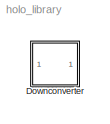
MODEL holo_library
KIND library
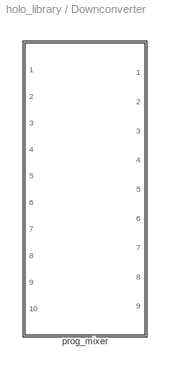
BLOCK [SubSystem] Downconverter
  FunctionWithSeparateData = off
  MinAlgLoopOccurrences = off
  Ports = []
  RTWSystemCode = Auto
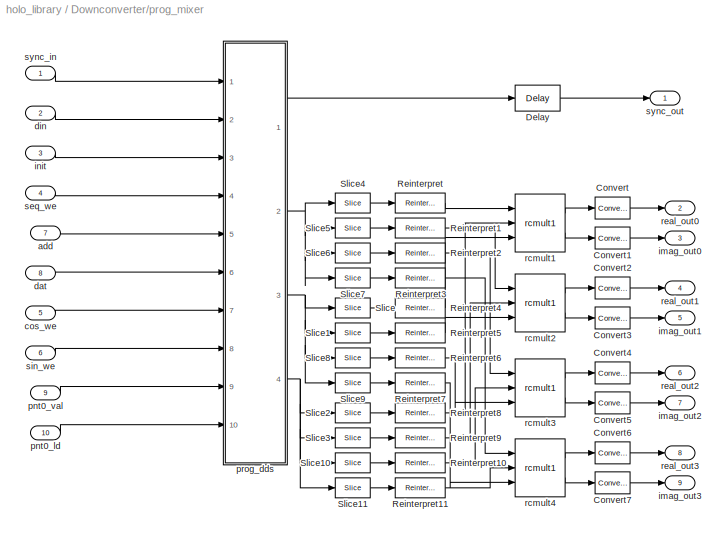
BLOCK [SubSystem] Downconverter/prog_mixer
  FunctionWithSeparateData = off
  MaskCallbackString = |||||||||||
  MaskEnableString = on,on,on,on,on,on,on,on,on,on,on,on
  MaskIconFrame = on
  MaskIconOpaque = on
  MaskIconRotate = none
  MaskIconUnits = autoscale
  MaskPromptString = Lookup depth (2^?)|Coefficient resolution (bits)|Streams|Input data resolution (bits)|Adder latency|BRAM latency|Multiplier latency|Numerator of preloaded frequency (N in N/Mxsampling frequency)|Denominator of preloaded frequency (M in N/Mxsampling frequency)|Initial phase offset|Output data bit width|Output data binary point
  MaskStyleString = edit,edit,edit,edit,edit,edit,edit,edit,edit,edit,edit,edit
  MaskTabNameString = ,,,,,,,,,,,
  MaskToolTipString = on,on,on,on,on,on,on,on,on,on,on,on
  MaskTunableValueString = on,on,on,on,on,on,on,on,on,on,on,on
  MaskValueString = 9|25|4|8|1|2|2|1|8|0|25|24
  MaskVarAliasString = ,,,,,,,,,,,
  MaskVariables = lookup_bits=@1;coeff_bits=@2;streams=@3;din_bits=@4;add_latency=@5;bram_latency=@6;mult_latency=@7;numerator=@8;denominator=@9;offset=@10;dout_bits=@11;dout_bin_pt=@12;
  MaskVisibilityString = on,on,on,on,on,on,on,on,on,on,on,on
  MinAlgLoopOccurrences = off
  Ports = [10, 9]
  RTWSystemCode = Auto
BLOCK [Reference] Downconverter/prog_mixer/Convert  REF=xbsIndex_r4/Convert
  Ports = [1, 1]
  SourceBlock = xbsIndex_r4/Convert
  SourceType = Xilinx Type Converter Block
  arith_type = Signed  (2's comp)
  bin_pt = dout_bin_pt
  block_type = convert
  block_version = 10.1.3
  dbl_ovrd = off
  has_advanced_control = 0
  infoedit = Hardware notes: rounding and saturating require hardware resources; truncating and wrapping do not.
  latency = 1
  n_bits = dout_bits
  overflow = Saturate
  pipeline = off
  quantization = Round  (unbiased: Even Values)
  sg_icon_stat = 35,22,1,1,white,blue,0,ba4d1298,right
  sg_mask_display = fprintf('','COMMENT: begin icon graphics');\npatch([0 45 45 0 ],[0 0 30 30 ],[0.77 0.82 0.91]);\npatch([15 10 17 10 15 23 25 27 35 28 22 17 23 17 22 28 35 27 25 23 15 ],[3 8 15 22 27 27 25 27 27 20 26 21 15 9 4 10 3 3 5 3 3 ],[0.98 0.96 0.92]);\nplot([0 45 45 0 0 ],[0 0 30 30 0 ]);\nfprintf('','COMMENT: end icon graphics');\nfprintf('','COMMENT: begin icon text');\ncolor('black');port_label('outpu...<+110ch>  <repeated x8 — deduplicated; at blocks: Convert, Convert1, Convert2, Convert3, Convert4, Convert5, Convert6, Convert7>
  sggui_pos = 20,20,461,334
  xl_area = [0,0,0,0,0,0,0]
  xl_use_area = off
BLOCK [Reference] Downconverter/prog_mixer/Convert1  REF=xbsIndex_r4/Convert
  Ports = [1, 1]
  SourceBlock = xbsIndex_r4/Convert
  SourceType = Xilinx Type Converter Block
  arith_type = Signed  (2's comp)
  bin_pt = dout_bin_pt
  block_type = convert
  block_version = 10.1.3
  dbl_ovrd = off
  has_advanced_control = 0
  infoedit = Hardware notes: rounding and saturating require hardware resources; truncating and wrapping do not.
  latency = 1
  n_bits = dout_bits
  overflow = Saturate
  pipeline = off
  quantization = Round  (unbiased: Even Values)
  sg_icon_stat = 35,22,1,1,white,blue,0,ba4d1298,right
  sggui_pos = 20,20,461,334
  xl_area = [0,0,0,0,0,0,0]
  xl_use_area = off
BLOCK [Reference] Downconverter/prog_mixer/Convert2  REF=xbsIndex_r4/Convert
  Ports = [1, 1]
  SourceBlock = xbsIndex_r4/Convert
  SourceType = Xilinx Type Converter Block
  arith_type = Signed  (2's comp)
  bin_pt = dout_bin_pt
  block_type = convert
  block_version = 10.1.3
  dbl_ovrd = off
  has_advanced_control = 0
  infoedit = Hardware notes: rounding and saturating require hardware resources; truncating and wrapping do not.
  latency = 1
  n_bits = dout_bits
  overflow = Saturate
  pipeline = off
  quantization = Round  (unbiased: Even Values)
  sg_icon_stat = 35,22,1,1,white,blue,0,ba4d1298,right
  sggui_pos = 20,20,461,334
  xl_area = [0,0,0,0,0,0,0]
  xl_use_area = off
BLOCK [Reference] Downconverter/prog_mixer/Convert3  REF=xbsIndex_r4/Convert
  Ports = [1, 1]
  SourceBlock = xbsIndex_r4/Convert
  SourceType = Xilinx Type Converter Block
  arith_type = Signed  (2's comp)
  bin_pt = dout_bin_pt
  block_type = convert
  block_version = 10.1.3
  dbl_ovrd = off
  has_advanced_control = 0
  infoedit = Hardware notes: rounding and saturating require hardware resources; truncating and wrapping do not.
  latency = 1
  n_bits = dout_bits
  overflow = Saturate
  pipeline = off
  quantization = Round  (unbiased: Even Values)
  sg_icon_stat = 35,22,1,1,white,blue,0,ba4d1298,right
  sggui_pos = 20,20,461,334
  xl_area = [0,0,0,0,0,0,0]
  xl_use_area = off
BLOCK [Reference] Downconverter/prog_mixer/Convert4  REF=xbsIndex_r4/Convert
  Ports = [1, 1]
  SourceBlock = xbsIndex_r4/Convert
  SourceType = Xilinx Type Converter Block
  arith_type = Signed  (2's comp)
  bin_pt = dout_bin_pt
  block_type = convert
  block_version = 10.1.3
  dbl_ovrd = off
  has_advanced_control = 0
  infoedit = Hardware notes: rounding and saturating require hardware resources; truncating and wrapping do not.
  latency = 1
  n_bits = dout_bits
  overflow = Saturate
  pipeline = off
  quantization = Round  (unbiased: Even Values)
  sg_icon_stat = 35,22,1,1,white,blue,0,ba4d1298,right
  sggui_pos = 20,20,461,334
  xl_area = [0,0,0,0,0,0,0]
  xl_use_area = off
BLOCK [Reference] Downconverter/prog_mixer/Convert5  REF=xbsIndex_r4/Convert
  Ports = [1, 1]
  SourceBlock = xbsIndex_r4/Convert
  SourceType = Xilinx Type Converter Block
  arith_type = Signed  (2's comp)
  bin_pt = dout_bin_pt
  block_type = convert
  block_version = 10.1.3
  dbl_ovrd = off
  has_advanced_control = 0
  infoedit = Hardware notes: rounding and saturating require hardware resources; truncating and wrapping do not.
  latency = 1
  n_bits = dout_bits
  overflow = Saturate
  pipeline = off
  quantization = Round  (unbiased: Even Values)
  sg_icon_stat = 35,22,1,1,white,blue,0,ba4d1298,right
  sggui_pos = 20,20,461,334
  xl_area = [0,0,0,0,0,0,0]
  xl_use_area = off
BLOCK [Reference] Downconverter/prog_mixer/Convert6  REF=xbsIndex_r4/Convert
  Ports = [1, 1]
  SourceBlock = xbsIndex_r4/Convert
  SourceType = Xilinx Type Converter Block
  arith_type = Signed  (2's comp)
  bin_pt = dout_bin_pt
  block_type = convert
  block_version = 10.1.3
  dbl_ovrd = off
  has_advanced_control = 0
  infoedit = Hardware notes: rounding and saturating require hardware resources; truncating and wrapping do not.
  latency = 1
  n_bits = dout_bits
  overflow = Saturate
  pipeline = off
  quantization = Round  (unbiased: Even Values)
  sg_icon_stat = 35,22,1,1,white,blue,0,ba4d1298,right
  sggui_pos = 20,20,461,334
  xl_area = [0,0,0,0,0,0,0]
  xl_use_area = off
BLOCK [Reference] Downconverter/prog_mixer/Convert7  REF=xbsIndex_r4/Convert
  Ports = [1, 1]
  SourceBlock = xbsIndex_r4/Convert
  SourceType = Xilinx Type Converter Block
  arith_type = Signed  (2's comp)
  bin_pt = dout_bin_pt
  block_type = convert
  block_version = 10.1.3
  dbl_ovrd = off
  has_advanced_control = 0
  infoedit = Hardware notes: rounding and saturating require hardware resources; truncating and wrapping do not.
  latency = 1
  n_bits = dout_bits
  overflow = Saturate
  pipeline = off
  quantization = Round  (unbiased: Even Values)
  sg_icon_stat = 35,22,1,1,white,blue,0,ba4d1298,right
  sggui_pos = 20,20,461,334
  xl_area = [0,0,0,0,0,0,0]
  xl_use_area = off
BLOCK [Reference] Downconverter/prog_mixer/Delay  REF=xbsIndex_r4/Delay
  Ports = [1, 1]
  SourceBlock = xbsIndex_r4/Delay
  SourceType = Xilinx Delay Block
  block_type = delay
  block_version = 11.4
  dbl_ovrd = off
  en = off
  has_advanced_control = 0
  infoedit = Hardware notes: A delay line is a chain, each link of which is an SRL16 followed by a flip-flop.
  latency = mult_latency+1
  reg_retiming = on
  sg_icon_stat = 45,26,1,1,white,blue,0,eabd56db,right
  sg_mask_display = fprintf('','COMMENT: begin icon graphics');\npatch([0 60 60 0 ],[0 0 56 56 ],[0.77 0.82 0.91]);\npatch([15 6 19 6 15 30 34 38 54 41 29 20 32 20 29 41 54 38 34 30 15 ],[6 15 28 41 50 50 46 50 50 37 49 40 28 16 7 19 6 6 10 6 6 ],[0.98 0.96 0.92]);\nplot([0 60 60 0 0 ],[0 0 56 56 0 ]);\nfprintf('','COMMENT: end icon graphics');\nfprintf('','COMMENT: begin icon text');\ncolor('black');disp('z^{-3}','t...<+55ch>
  sggui_pos = 20,20,348,255
  xl_area = [0,0,0,0,0,0,0]
  xl_use_area = off
BLOCK [Reference] Downconverter/prog_mixer/Reinterpret  REF=xbsIndex_r4/Reinterpret
  Ports = [1, 1]
  SourceBlock = xbsIndex_r4/Reinterpret
  SourceType = Xilinx Type Reinterpreter Block
  arith_type = Signed  (2's comp)
  bin_pt = din_bits-1
  block_type = reinterpret
  block_version = 11.4
  force_arith_type = on
  force_bin_pt = on
  has_advanced_control = 0
  infoedit = Changes signal type without altering the binary representation.   You can changed the signal between signed and unsigned, and relocate the binary point.<br><br>Hardware notes: In hardware this block costs nothing.<br><br>Example:  Suppose the input is 6 bits wide, signed, with 2 fractional bits, and the output is forced to unsigned with 0 fractional bits.  Then an input of -2.0 (1110.00 in binary ...<+59ch>  <repeated x12 — deduplicated; at blocks: Reinterpret, Reinterpret1, Reinterpret10, Reinterpret11, Reinterpret2, Reinterpret3, Reinterpret4, Reinterpret5, Reinterpret6, Reinterpret7, Reinterpret8, Reinterpret9>
  sg_icon_stat = 50,20,1,1,white,blue,0,8982c1db,right
  sg_mask_display = fprintf('','COMMENT: begin icon graphics');\npatch([0 50 50 0 ],[0 0 32 32 ],[0.77 0.82 0.91]);\npatch([16 11 18 11 16 24 26 28 37 30 23 18 25 18 23 30 37 28 26 24 16 ],[3 8 15 22 27 27 25 27 27 20 27 22 15 8 3 10 3 3 5 3 3 ],[0.98 0.96 0.92]);\nplot([0 50 50 0 0 ],[0 0 32 32 0 ]);\nfprintf('','COMMENT: end icon graphics');\nfprintf('','COMMENT: begin icon text');\ncolor('black');disp('reinterpret...<+44ch>  <repeated x12 — deduplicated; at blocks: Reinterpret, Reinterpret1, Reinterpret10, Reinterpret11, Reinterpret2, Reinterpret3, Reinterpret4, Reinterpret5, Reinterpret6, Reinterpret7, Reinterpret8, Reinterpret9>
  sggui_pos = 17,25,372,364
BLOCK [Reference] Downconverter/prog_mixer/Reinterpret1  REF=xbsIndex_r4/Reinterpret
  Ports = [1, 1]
  SourceBlock = xbsIndex_r4/Reinterpret
  SourceType = Xilinx Type Reinterpreter Block
  arith_type = Signed  (2's comp)
  bin_pt = din_bits-1
  block_type = reinterpret
  block_version = 11.4
  force_arith_type = on
  force_bin_pt = on
  has_advanced_control = 0
  sg_icon_stat = 50,20,1,1,white,blue,0,8982c1db,right
  sggui_pos = 17,25,372,364
BLOCK [Reference] Downconverter/prog_mixer/Reinterpret10  REF=xbsIndex_r4/Reinterpret
  Ports = [1, 1]
  SourceBlock = xbsIndex_r4/Reinterpret
  SourceType = Xilinx Type Reinterpreter Block
  arith_type = Signed  (2's comp)
  bin_pt = coeff_bits-2
  block_type = reinterpret
  block_version = 11.4
  force_arith_type = on
  force_bin_pt = on
  has_advanced_control = 0
  sg_icon_stat = 50,20,1,1,white,blue,0,8982c1db,right
  sggui_pos = 17,25,372,364
BLOCK [Reference] Downconverter/prog_mixer/Reinterpret11  REF=xbsIndex_r4/Reinterpret
  Ports = [1, 1]
  SourceBlock = xbsIndex_r4/Reinterpret
  SourceType = Xilinx Type Reinterpreter Block
  arith_type = Signed  (2's comp)
  bin_pt = coeff_bits-2
  block_type = reinterpret
  block_version = 11.4
  force_arith_type = on
  force_bin_pt = on
  has_advanced_control = 0
  sg_icon_stat = 50,20,1,1,white,blue,0,8982c1db,right
  sggui_pos = 17,25,372,364
BLOCK [Reference] Downconverter/prog_mixer/Reinterpret2  REF=xbsIndex_r4/Reinterpret
  Ports = [1, 1]
  SourceBlock = xbsIndex_r4/Reinterpret
  SourceType = Xilinx Type Reinterpreter Block
  arith_type = Signed  (2's comp)
  bin_pt = din_bits-1
  block_type = reinterpret
  block_version = 11.4
  force_arith_type = on
  force_bin_pt = on
  has_advanced_control = 0
  sg_icon_stat = 50,20,1,1,white,blue,0,8982c1db,right
  sggui_pos = 17,25,372,364
BLOCK [Reference] Downconverter/prog_mixer/Reinterpret3  REF=xbsIndex_r4/Reinterpret
  Ports = [1, 1]
  SourceBlock = xbsIndex_r4/Reinterpret
  SourceType = Xilinx Type Reinterpreter Block
  arith_type = Signed  (2's comp)
  bin_pt = din_bits-1
  block_type = reinterpret
  block_version = 11.4
  force_arith_type = on
  force_bin_pt = on
  has_advanced_control = 0
  sg_icon_stat = 50,20,1,1,white,blue,0,8982c1db,right
  sggui_pos = 17,25,372,364
BLOCK [Reference] Downconverter/prog_mixer/Reinterpret4  REF=xbsIndex_r4/Reinterpret
  Ports = [1, 1]
  SourceBlock = xbsIndex_r4/Reinterpret
  SourceType = Xilinx Type Reinterpreter Block
  arith_type = Signed  (2's comp)
  bin_pt = coeff_bits-2
  block_type = reinterpret
  block_version = 11.4
  force_arith_type = on
  force_bin_pt = on
  has_advanced_control = 0
  sg_icon_stat = 50,20,1,1,white,blue,0,8982c1db,right
  sggui_pos = 17,25,372,364
BLOCK [Reference] Downconverter/prog_mixer/Reinterpret5  REF=xbsIndex_r4/Reinterpret
  Ports = [1, 1]
  SourceBlock = xbsIndex_r4/Reinterpret
  SourceType = Xilinx Type Reinterpreter Block
  arith_type = Signed  (2's comp)
  bin_pt = coeff_bits-2
  block_type = reinterpret
  block_version = 11.4
  force_arith_type = on
  force_bin_pt = on
  has_advanced_control = 0
  sg_icon_stat = 50,20,1,1,white,blue,0,8982c1db,right
  sggui_pos = 17,25,372,364
BLOCK [Reference] Downconverter/prog_mixer/Reinterpret6  REF=xbsIndex_r4/Reinterpret
  Ports = [1, 1]
  SourceBlock = xbsIndex_r4/Reinterpret
  SourceType = Xilinx Type Reinterpreter Block
  arith_type = Signed  (2's comp)
  bin_pt = coeff_bits-2
  block_type = reinterpret
  block_version = 11.4
  force_arith_type = on
  force_bin_pt = on
  has_advanced_control = 0
  sg_icon_stat = 50,20,1,1,white,blue,0,8982c1db,right
  sggui_pos = 17,25,372,364
BLOCK [Reference] Downconverter/prog_mixer/Reinterpret7  REF=xbsIndex_r4/Reinterpret
  Ports = [1, 1]
  SourceBlock = xbsIndex_r4/Reinterpret
  SourceType = Xilinx Type Reinterpreter Block
  arith_type = Signed  (2's comp)
  bin_pt = coeff_bits-2
  block_type = reinterpret
  block_version = 11.4
  force_arith_type = on
  force_bin_pt = on
  has_advanced_control = 0
  sg_icon_stat = 50,20,1,1,white,blue,0,8982c1db,right
  sggui_pos = 17,25,372,364
BLOCK [Reference] Downconverter/prog_mixer/Reinterpret8  REF=xbsIndex_r4/Reinterpret
  Ports = [1, 1]
  SourceBlock = xbsIndex_r4/Reinterpret
  SourceType = Xilinx Type Reinterpreter Block
  arith_type = Signed  (2's comp)
  bin_pt = coeff_bits-2
  block_type = reinterpret
  block_version = 11.4
  force_arith_type = on
  force_bin_pt = on
  has_advanced_control = 0
  sg_icon_stat = 50,20,1,1,white,blue,0,8982c1db,right
  sggui_pos = 17,25,372,364
BLOCK [Reference] Downconverter/prog_mixer/Reinterpret9  REF=xbsIndex_r4/Reinterpret
  Ports = [1, 1]
  SourceBlock = xbsIndex_r4/Reinterpret
  SourceType = Xilinx Type Reinterpreter Block
  arith_type = Signed  (2's comp)
  bin_pt = coeff_bits-2
  block_type = reinterpret
  block_version = 11.4
  force_arith_type = on
  force_bin_pt = on
  has_advanced_control = 0
  sg_icon_stat = 50,20,1,1,white,blue,0,8982c1db,right
  sggui_pos = 17,25,372,364
BLOCK [Reference] Downconverter/prog_mixer/Slice  REF=xbsIndex_r4/Slice
  Ports = [1, 1]
  SourceBlock = xbsIndex_r4/Slice
  SourceType = Xilinx Bit Slice Extractor Block
  base0 = LSB of Input
  base1 = MSB of Input
  bit0 = coeff_bits*0
  bit1 = 0
  block_type = slice
  block_version = 11.4
  boolean_output = off
  dbl_ovrd = off
  has_advanced_control = 0
  infoedit = Extracts a given range of bits from each input sample and presents it at the output.  The output type is ordinarily unsigned with binary point at zero, but can be Boolean when the slice is one bit wide.<br><br>Hardware notes: In hardware this block costs nothing.  <repeated x16 — deduplicated; at blocks: Slice, Slice1, Slice10, Slice11, Slice2, Slice3, Slice4, Slice5, Slice6, Slice7, Slice8, Slice9, pnt>
  mode = Lower Bit Location + Width
  nbits = coeff_bits
  sg_icon_stat = 35,20,1,1,white,blue,0,b1026674,right
  sg_mask_display = fprintf('','COMMENT: begin icon graphics');\npatch([0 60 60 0 ],[0 0 30 30 ],[0.77 0.82 0.91]);\npatch([22 17 24 17 22 30 32 34 42 35 29 24 30 24 29 35 42 34 32 30 22 ],[3 8 15 22 27 27 25 27 27 20 26 21 15 9 4 10 3 3 5 3 3 ],[0.98 0.96 0.92]);\nplot([0 60 60 0 0 ],[0 0 30 30 0 ]);\nfprintf('','COMMENT: end icon graphics');\nfprintf('','COMMENT: begin icon text');\ncolor('black');port_label('outpu...<+55ch>  <repeated x16 — deduplicated; at blocks: Slice, Slice1, Slice10, Slice11, Slice2, Slice3, Slice4, Slice5, Slice6, Slice7, Slice8, Slice9, pnt>
  sggui_pos = 62,218,537,482
BLOCK [Reference] Downconverter/prog_mixer/Slice1  REF=xbsIndex_r4/Slice
  Ports = [1, 1]
  SourceBlock = xbsIndex_r4/Slice
  SourceType = Xilinx Bit Slice Extractor Block
  base0 = LSB of Input
  base1 = MSB of Input
  bit0 = coeff_bits*1
  bit1 = 0
  block_type = slice
  block_version = 11.4
  boolean_output = off
  dbl_ovrd = off
  has_advanced_control = 0
  mode = Lower Bit Location + Width
  nbits = coeff_bits
  sg_icon_stat = 35,20,1,1,white,blue,0,b1026674,right
  sggui_pos = -1,-1,-1,-1
BLOCK [Reference] Downconverter/prog_mixer/Slice10  REF=xbsIndex_r4/Slice
  Ports = [1, 1]
  SourceBlock = xbsIndex_r4/Slice
  SourceType = Xilinx Bit Slice Extractor Block
  base0 = LSB of Input
  base1 = MSB of Input
  bit0 = coeff_bits*2
  bit1 = 0
  block_type = slice
  block_version = 11.4
  boolean_output = off
  dbl_ovrd = off
  has_advanced_control = 0
  mode = Lower Bit Location + Width
  nbits = coeff_bits
  sg_icon_stat = 35,20,1,1,white,blue,0,b1026674,right
  sggui_pos = 62,218,537,482
BLOCK [Reference] Downconverter/prog_mixer/Slice11  REF=xbsIndex_r4/Slice
  Ports = [1, 1]
  SourceBlock = xbsIndex_r4/Slice
  SourceType = Xilinx Bit Slice Extractor Block
  base0 = LSB of Input
  base1 = MSB of Input
  bit0 = coeff_bits*3
  bit1 = 0
  block_type = slice
  block_version = 11.4
  boolean_output = off
  dbl_ovrd = off
  has_advanced_control = 0
  mode = Lower Bit Location + Width
  nbits = coeff_bits
  sg_icon_stat = 35,20,1,1,white,blue,0,b1026674,right
  sggui_pos = -1,-1,-1,-1
BLOCK [Reference] Downconverter/prog_mixer/Slice2  REF=xbsIndex_r4/Slice
  Ports = [1, 1]
  SourceBlock = xbsIndex_r4/Slice
  SourceType = Xilinx Bit Slice Extractor Block
  base0 = LSB of Input
  base1 = MSB of Input
  bit0 = coeff_bits*0
  bit1 = 0
  block_type = slice
  block_version = 11.4
  boolean_output = off
  dbl_ovrd = off
  has_advanced_control = 0
  mode = Lower Bit Location + Width
  nbits = coeff_bits
  sg_icon_stat = 35,20,1,1,white,blue,0,b1026674,right
  sggui_pos = 62,218,537,482
BLOCK [Reference] Downconverter/prog_mixer/Slice3  REF=xbsIndex_r4/Slice
  Ports = [1, 1]
  SourceBlock = xbsIndex_r4/Slice
  SourceType = Xilinx Bit Slice Extractor Block
  base0 = LSB of Input
  base1 = MSB of Input
  bit0 = coeff_bits*1
  bit1 = 0
  block_type = slice
  block_version = 11.4
  boolean_output = off
  dbl_ovrd = off
  has_advanced_control = 0
  mode = Lower Bit Location + Width
  nbits = coeff_bits
  sg_icon_stat = 35,20,1,1,white,blue,0,b1026674,right
  sggui_pos = -1,-1,-1,-1
BLOCK [Reference] Downconverter/prog_mixer/Slice4  REF=xbsIndex_r4/Slice
  Ports = [1, 1]
  SourceBlock = xbsIndex_r4/Slice
  SourceType = Xilinx Bit Slice Extractor Block
  base0 = LSB of Input
  base1 = MSB of Input
  bit0 = din_bits*3
  bit1 = 0
  block_type = slice
  block_version = 11.4
  boolean_output = off
  dbl_ovrd = off
  has_advanced_control = 0
  mode = Lower Bit Location + Width
  nbits = din_bits
  sg_icon_stat = 35,20,1,1,white,blue,0,b1026674,right
  sggui_pos = 578,131,537,482
BLOCK [Reference] Downconverter/prog_mixer/Slice5  REF=xbsIndex_r4/Slice
  Ports = [1, 1]
  SourceBlock = xbsIndex_r4/Slice
  SourceType = Xilinx Bit Slice Extractor Block
  base0 = LSB of Input
  base1 = MSB of Input
  bit0 = din_bits*2
  bit1 = 0
  block_type = slice
  block_version = 11.4
  boolean_output = off
  dbl_ovrd = off
  has_advanced_control = 0
  mode = Lower Bit Location + Width
  nbits = din_bits
  sg_icon_stat = 35,20,1,1,white,blue,0,b1026674,right
  sggui_pos = -1,-1,-1,-1
BLOCK [Reference] Downconverter/prog_mixer/Slice6  REF=xbsIndex_r4/Slice
  Ports = [1, 1]
  SourceBlock = xbsIndex_r4/Slice
  SourceType = Xilinx Bit Slice Extractor Block
  base0 = LSB of Input
  base1 = MSB of Input
  bit0 = din_bits*1
  bit1 = 0
  block_type = slice
  block_version = 11.4
  boolean_output = off
  dbl_ovrd = off
  has_advanced_control = 0
  mode = Lower Bit Location + Width
  nbits = din_bits
  sg_icon_stat = 35,20,1,1,white,blue,0,b1026674,right
  sggui_pos = 576,131,537,482
BLOCK [Reference] Downconverter/prog_mixer/Slice7  REF=xbsIndex_r4/Slice
  Ports = [1, 1]
  SourceBlock = xbsIndex_r4/Slice
  SourceType = Xilinx Bit Slice Extractor Block
  base0 = LSB of Input
  base1 = MSB of Input
  bit0 = din_bits*0
  bit1 = 0
  block_type = slice
  block_version = 11.4
  boolean_output = off
  dbl_ovrd = off
  has_advanced_control = 0
  mode = Lower Bit Location + Width
  nbits = din_bits
  sg_icon_stat = 35,20,1,1,white,blue,0,b1026674,right
  sggui_pos = -1,-1,-1,-1
BLOCK [Reference] Downconverter/prog_mixer/Slice8  REF=xbsIndex_r4/Slice
  Ports = [1, 1]
  SourceBlock = xbsIndex_r4/Slice
  SourceType = Xilinx Bit Slice Extractor Block
  base0 = LSB of Input
  base1 = MSB of Input
  bit0 = coeff_bits*2
  bit1 = 0
  block_type = slice
  block_version = 11.4
  boolean_output = off
  dbl_ovrd = off
  has_advanced_control = 0
  mode = Lower Bit Location + Width
  nbits = coeff_bits
  sg_icon_stat = 35,20,1,1,white,blue,0,b1026674,right
  sggui_pos = 62,218,537,482
BLOCK [Reference] Downconverter/prog_mixer/Slice9  REF=xbsIndex_r4/Slice
  Ports = [1, 1]
  SourceBlock = xbsIndex_r4/Slice
  SourceType = Xilinx Bit Slice Extractor Block
  base0 = LSB of Input
  base1 = MSB of Input
  bit0 = coeff_bits*3
  bit1 = 0
  block_type = slice
  block_version = 11.4
  boolean_output = off
  dbl_ovrd = off
  has_advanced_control = 0
  mode = Lower Bit Location + Width
  nbits = coeff_bits
  sg_icon_stat = 35,20,1,1,white,blue,0,b1026674,right
  sggui_pos = -1,-1,-1,-1
BLOCK [Inport] Downconverter/prog_mixer/add
  IconDisplay = Port number
  OutDataType = sfix(16)
  OutScaling = 2^0
  Port = 7
BLOCK [Inport] Downconverter/prog_mixer/cos_we
  IconDisplay = Port number
  OutDataType = sfix(16)
  OutScaling = 2^0
  Port = 5
BLOCK [Inport] Downconverter/prog_mixer/dat
  IconDisplay = Port number
  OutDataType = sfix(16)
  OutScaling = 2^0
  Port = 8
BLOCK [Inport] Downconverter/prog_mixer/din
  IconDisplay = Port number
  OutDataType = sfix(16)
  OutScaling = 2^0
  Port = 2
BLOCK [Outport] Downconverter/prog_mixer/imag_out0
  IconDisplay = Port number
  OutDataType = sfix(16)
  OutScaling = 2^0
  Port = 3
BLOCK [Outport] Downconverter/prog_mixer/imag_out1
  IconDisplay = Port number
  OutDataType = sfix(16)
  OutScaling = 2^0
  Port = 5
BLOCK [Outport] Downconverter/prog_mixer/imag_out2
  IconDisplay = Port number
  OutDataType = sfix(16)
  OutScaling = 2^0
  Port = 7
BLOCK [Outport] Downconverter/prog_mixer/imag_out3
  IconDisplay = Port number
  OutDataType = sfix(16)
  OutScaling = 2^0
  Port = 9
BLOCK [Inport] Downconverter/prog_mixer/init
  IconDisplay = Port number
  OutDataType = sfix(16)
  OutScaling = 2^0
  Port = 3
BLOCK [Inport] Downconverter/prog_mixer/pnt0_ld
  IconDisplay = Port number
  OutDataType = sfix(16)
  OutScaling = 2^0
  Port = 10
BLOCK [Inport] Downconverter/prog_mixer/pnt0_val
  IconDisplay = Port number
  OutDataType = sfix(16)
  OutScaling = 2^0
  Port = 9
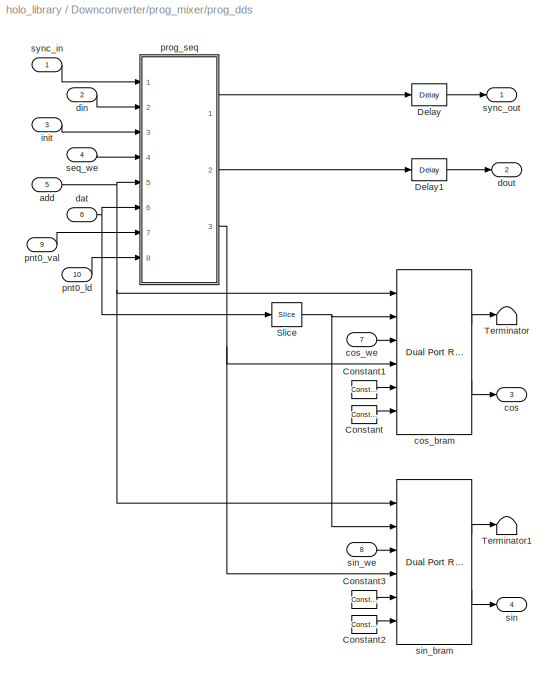
BLOCK [SubSystem] Downconverter/prog_mixer/prog_dds
  FunctionWithSeparateData = off
  MaskCallbackString = ||||||
  MaskEnableString = on,on,on,on,on,on,on
  MaskIconFrame = on
  MaskIconOpaque = on
  MaskIconRotate = none
  MaskIconUnits = autoscale
  MaskPromptString = Slowest frequency supported as fraction of sampling frequency (1/2^?)|Number of data streams|Resolution of mixing products (bits) |Numerator of initial frequency (N in N/M*sampling frequency)|Denominator of initial frequency (M in N/M*samping frequency)|Initial phase offset (samples)|BRAM latency
  MaskStyleString = edit,edit,edit,edit,edit,edit,edit
  MaskTabNameString = ,,,,,,
  MaskToolTipString = on,on,on,on,on,on,on
  MaskTunableValueString = on,on,on,on,on,on,on
  MaskType = prog_dds
  MaskValueString = lookup_bits|streams|coeff_bits|numerator|denominator|offset|bram_latency
  MaskVarAliasString = ,,,,,,
  MaskVariables = lookup_bits=@1;streams=@2;data_bits=@3;numerator=@4;denominator=@5;offset=@6;bram_latency=@7;
  MaskVisibilityString = on,on,on,on,on,on,on
  MinAlgLoopOccurrences = off
  Ports = [10, 4]
  RTWSystemCode = Auto
  UserData = DataTag0
  UserDataPersistent = on
BLOCK [Reference] Downconverter/prog_mixer/prog_dds/Constant  REF=xbsIndex_r4/Constant
  Ports = [0, 1]
  SourceBlock = xbsIndex_r4/Constant
  SourceType = Xilinx Constant Block Block
  arith_type = Boolean
  bin_pt = 14
  block_type = constant
  block_version = 11.4
  carry = CIN
  const = 0
  dbl_ovrd = off
  dsp48_infoedit = The use of this block for DSP48 instructions is deprecated.  Please use the Opmode block.
  equ = P=C
  explicit_period = off
  has_advanced_control = 0
  inp1 = P
  inp2 = PCIN>>17
  n_bits = 16
  opr = +
  opselect = C
  period = 1
  sg_icon_stat = 25,18,1,1,white,blue,0,72d575a1,right
  sg_list_contents = {'table'=>{'carry'=>'popup(0|1|CIN|~SIGN(P or PCIN)|~SIGN(A*B or A:B)|~SIGND(A*B or A:B))','inp1'=>'popup(0|P|A:B|A*B|C|P+C|A:B+C)','inp2'=>'popup(0|PCIN|P|C|PCIN>>17|P>>17)','opselect'=>'popup(C + A*B|PCIN + A*B|P + A*B|A * B|C + A:B|C - A:B|C|Custom)','userSelections'=>{'carry'=>'CIN','inp1'=>'P','inp2'=>'PCIN>>17','opselect'=>'C'}}}  <repeated x4 — deduplicated; at blocks: Constant, Constant1, Constant2, Constant3>
  sg_mask_display = fprintf('','COMMENT: begin icon graphics');\npatch([0 55 55 0 ],[0 0 26 26 ],[0.77 0.82 0.91]);\npatch([20 16 22 16 20 27 29 31 38 32 26 22 28 22 26 32 38 31 29 27 20 ],[3 7 13 19 23 23 21 23 23 17 23 19 13 7 3 9 3 3 5 3 3 ],[0.98 0.96 0.92]);\nplot([0 55 55 0 0 ],[0 0 26 26 0 ]);\nfprintf('','COMMENT: end icon graphics');\nfprintf('','COMMENT: begin icon text');\ncolor('black');port_label('output...<+50ch>  <repeated x4 — deduplicated; at blocks: Constant, Constant1, Constant2, Constant3>
  sggui_pos = -1,-1,-1,-1
BLOCK [Reference] Downconverter/prog_mixer/prog_dds/Constant1  REF=xbsIndex_r4/Constant
  Ports = [0, 1]
  SourceBlock = xbsIndex_r4/Constant
  SourceType = Xilinx Constant Block Block
  arith_type = Unsigned
  bin_pt = 0
  block_type = constant
  block_version = 11.4
  carry = CIN
  const = 0
  dbl_ovrd = off
  dsp48_infoedit = The use of this block for DSP48 instructions is deprecated.  Please use the Opmode block.
  equ = P=C
  explicit_period = off
  has_advanced_control = 0
  inp1 = P
  inp2 = PCIN>>17
  n_bits = streams*data_bits
  opr = +
  opselect = C
  period = 1
  sg_icon_stat = 25,18,1,1,white,blue,0,72d575a1,right
  sggui_pos = 20,20,400,346
BLOCK [Reference] Downconverter/prog_mixer/prog_dds/Constant2  REF=xbsIndex_r4/Constant
  Ports = [0, 1]
  SourceBlock = xbsIndex_r4/Constant
  SourceType = Xilinx Constant Block Block
  arith_type = Boolean
  bin_pt = 14
  block_type = constant
  block_version = 11.4
  carry = CIN
  const = 0
  dbl_ovrd = off
  dsp48_infoedit = The use of this block for DSP48 instructions is deprecated.  Please use the Opmode block.
  equ = P=C
  explicit_period = off
  has_advanced_control = 0
  inp1 = P
  inp2 = PCIN>>17
  n_bits = 16
  opr = +
  opselect = C
  period = 1
  sg_icon_stat = 25,18,1,1,white,blue,0,72d575a1,right
  sggui_pos = -1,-1,-1,-1
BLOCK [Reference] Downconverter/prog_mixer/prog_dds/Constant3  REF=xbsIndex_r4/Constant
  Ports = [0, 1]
  SourceBlock = xbsIndex_r4/Constant
  SourceType = Xilinx Constant Block Block
  arith_type = Unsigned
  bin_pt = 0
  block_type = constant
  block_version = 11.4
  carry = CIN
  const = 0
  dbl_ovrd = off
  dsp48_infoedit = The use of this block for DSP48 instructions is deprecated.  Please use the Opmode block.
  equ = P=C
  explicit_period = off
  has_advanced_control = 0
  inp1 = P
  inp2 = PCIN>>17
  n_bits = streams*data_bits
  opr = +
  opselect = C
  period = 1
  sg_icon_stat = 25,18,1,1,white,blue,0,72d575a1,right
  sggui_pos = -1,-1,-1,-1
BLOCK [Reference] Downconverter/prog_mixer/prog_dds/Delay  REF=xbsIndex_r4/Delay
  Ports = [1, 1]
  SourceBlock = xbsIndex_r4/Delay
  SourceType = Xilinx Delay Block
  block_type = delay
  block_version = 11.4
  dbl_ovrd = off
  en = off
  has_advanced_control = 0
  infoedit = Hardware notes: A delay line is a chain, each link of which is an SRL16 followed by a flip-flop.
  latency = bram_latency
  reg_retiming = on
  sg_icon_stat = 35,22,1,1,white,blue,0,0a7a6cf1,right
  sg_mask_display = fprintf('','COMMENT: begin icon graphics');\npatch([0 60 60 0 ],[0 0 56 56 ],[0.77 0.82 0.91]);\npatch([15 6 19 6 15 30 34 38 54 41 29 20 32 20 29 41 54 38 34 30 15 ],[6 15 28 41 50 50 46 50 50 37 49 40 28 16 7 19 6 6 10 6 6 ],[0.98 0.96 0.92]);\nplot([0 60 60 0 0 ],[0 0 56 56 0 ]);\nfprintf('','COMMENT: end icon graphics');\nfprintf('','COMMENT: begin icon text');\ncolor('black');disp('z^{-2}','t...<+55ch>  <repeated x4 — deduplicated; at blocks: Delay, Delay1, din_delay, sync_delay>
  sggui_pos = -1,-1,-1,-1
  xl_area = [0,0,0,0,0,0,0]
  xl_use_area = off
BLOCK [Reference] Downconverter/prog_mixer/prog_dds/Delay1  REF=xbsIndex_r4/Delay
  Ports = [1, 1]
  SourceBlock = xbsIndex_r4/Delay
  SourceType = Xilinx Delay Block
  block_type = delay
  block_version = 11.4
  dbl_ovrd = off
  en = off
  has_advanced_control = 0
  infoedit = Hardware notes: A delay line is a chain, each link of which is an SRL16 followed by a flip-flop.
  latency = bram_latency
  reg_retiming = on
  sg_icon_stat = 35,22,1,1,white,blue,0,0a7a6cf1,right
  sggui_pos = -1,-1,-1,-1
  xl_area = [0,0,0,0,0,0,0]
  xl_use_area = off
BLOCK [Reference] Downconverter/prog_mixer/prog_dds/Slice  REF=xbsIndex_r4/Slice
  Ports = [1, 1]
  SourceBlock = xbsIndex_r4/Slice
  SourceType = Xilinx Bit Slice Extractor Block
  base0 = LSB of Input
  base1 = MSB of Input
  bit0 = 0
  bit1 = 0
  block_type = slice
  block_version = 11.4
  boolean_output = off
  dbl_ovrd = off
  has_advanced_control = 0
  mode = Lower Bit Location + Width
  nbits = data_bits
  sg_icon_stat = 30,24,1,1,white,blue,0,b1026674,right
  sggui_pos = 20,20,449,378
BLOCK [Terminator] Downconverter/prog_mixer/prog_dds/Terminator
BLOCK [Terminator] Downconverter/prog_mixer/prog_dds/Terminator1
BLOCK [Inport] Downconverter/prog_mixer/prog_dds/add
  IconDisplay = Port number
  OutDataType = sfix(16)
  OutScaling = 2^0
  Port = 5
BLOCK [Outport] Downconverter/prog_mixer/prog_dds/cos
  IconDisplay = Port number
  OutDataType = sfix(16)
  OutScaling = 2^0
  Port = 3
BLOCK [Reference] Downconverter/prog_mixer/prog_dds/cos_bram  REF=xbsIndex_r4/Dual Port RAM
  Ports = [6, 2]
  SourceBlock = xbsIndex_r4/Dual Port RAM
  SourceType = Xilinx Dual Port Random Access Memory Block
  block_type = dpram
  block_version = 11.4
  dbl_ovrd = off
  depth = (2^lookup_bits)*streams
  distributed_mem = Block RAM
  en_a = off
  en_b = off
  has_advanced_control = 0
  initVector = [mod( cos((mod(floor([0:denominator*streams-1]/streams) + mod([0:denominator*streams-1],streams)*numerator, denominator) * 2 * pi)/denominator) * 2^(data_bits-2) + 2^data_bits, 2^data_bits), zeros(1,(2^lookup_bits*streams)-(denominator*streams))]
  init_a = 0
  init_b = 0
  latency = bram_latency
  optimize = Speed
  rst_a = off
  rst_b = off
  sg_icon_stat = 75,165,1,1,white,blue,0,f19ffcf5,right
  sg_mask_display = fprintf('','COMMENT: begin icon graphics');\npatch([0 75 75 0 ],[0 0 165 165 ],[0.77 0.82 0.91]);\npatch([17 5 23 5 17 37 42 47 68 51 35 23 40 23 35 51 68 47 42 37 17 ],[53 65 83 101 113 113 108 113 113 96 112 100 83 66 54 70 53 53 58 53 53 ],[0.98 0.96 0.92]);\nplot([0 75 75 0 0 ],[0 0 165 165 0 ]);\nfprintf('','COMMENT: end icon graphics');\nfprintf('','COMMENT: begin icon text');\ncolor('black'...<+390ch>
  sggui_pos = 617,86,442,439
  use_rpm = on
  write_mode_A = Read After Write
  write_mode_B = Read After Write
  xl_area = [0,0,0,0,0,0,0]
  xl_use_area = off
BLOCK [Inport] Downconverter/prog_mixer/prog_dds/cos_we
  IconDisplay = Port number
  OutDataType = sfix(16)
  OutScaling = 2^0
  Port = 7
BLOCK [Inport] Downconverter/prog_mixer/prog_dds/dat
  IconDisplay = Port number
  OutDataType = sfix(16)
  OutScaling = 2^0
  Port = 6
BLOCK [Inport] Downconverter/prog_mixer/prog_dds/din
  IconDisplay = Port number
  OutDataType = sfix(16)
  OutScaling = 2^0
  Port = 2
BLOCK [Outport] Downconverter/prog_mixer/prog_dds/dout
  IconDisplay = Port number
  OutDataType = sfix(16)
  OutScaling = 2^0
  Port = 2
BLOCK [Inport] Downconverter/prog_mixer/prog_dds/init
  IconDisplay = Port number
  OutDataType = sfix(16)
  OutScaling = 2^0
  Port = 3
BLOCK [Inport] Downconverter/prog_mixer/prog_dds/pnt0_ld
  IconDisplay = Port number
  OutDataType = sfix(16)
  OutScaling = 2^0
  Port = 10
BLOCK [Inport] Downconverter/prog_mixer/prog_dds/pnt0_val
  IconDisplay = Port number
  OutDataType = sfix(16)
  OutScaling = 2^0
  Port = 9
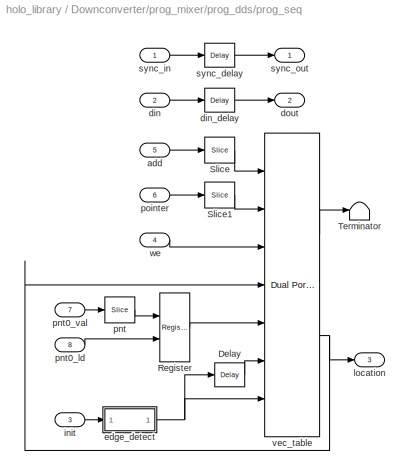
BLOCK [SubSystem] Downconverter/prog_mixer/prog_dds/prog_seq
  FunctionWithSeparateData = off
  MaskCallbackString = ||
  MaskDescription = Generates a preloaded sequence of vectors. Each vector contains a pointer to the next in the sequence. \nadd - vector target address used during programming\npointer - address of next vector in sequence \nvec0_pnt - \ninit - starts the sequence\n\n
  MaskEnableString = on,on,on
  MaskIconFrame = on
  MaskIconOpaque = on
  MaskIconRotate = none
  MaskIconUnits = autoscale
  MaskPromptString = Max number pointers  (2^?)|Preloaded pointer vector|Preloaded initial pointer
  MaskStyleString = edit,edit,edit
  MaskTabNameString = ,,
  MaskToolTipString = on,on,on
  MaskTunableValueString = on,on,on
  MaskType = prog_seq
  MaskValueString = lookup_bits|[mod([0:denominator-1]+(numerator*streams), denominator), zeros(1,2^lookup_bits-denominator)]|offset
  MaskVarAliasString = ,,
  MaskVariables = pnt_bits=@1;pre_pnt_vec=@2;pre_init_pnt=@3;
  MaskVisibilityString = on,on,on
  MinAlgLoopOccurrences = off
  Ports = [8, 3]
  RTWSystemCode = Auto
BLOCK [Reference] Downconverter/prog_mixer/prog_dds/prog_seq/Delay  REF=xbsIndex_r4/Delay
  Ports = [1, 1]
  SourceBlock = xbsIndex_r4/Delay
  SourceType = Xilinx Delay Block
  block_type = delay
  block_version = 11.4
  dbl_ovrd = off
  en = off
  has_advanced_control = 0
  infoedit = Hardware notes: A delay line is a chain, each link of which is an SRL16 followed by a flip-flop.
  latency = 1
  reg_retiming = off
  sg_icon_stat = 30,24,1,1,white,blue,0,fc531c0e,right
  sg_mask_display = fprintf('','COMMENT: begin icon graphics');\npatch([0 60 60 0 ],[0 0 56 56 ],[0.77 0.82 0.91]);\npatch([15 6 19 6 15 30 34 38 54 41 29 20 32 20 29 41 54 38 34 30 15 ],[6 15 28 41 50 50 46 50 50 37 49 40 28 16 7 19 6 6 10 6 6 ],[0.98 0.96 0.92]);\nplot([0 60 60 0 0 ],[0 0 56 56 0 ]);\nfprintf('','COMMENT: end icon graphics');\nfprintf('','COMMENT: begin icon text');\ncolor('black');disp('z^{-1}','t...<+55ch>
  sggui_pos = -1,-1,-1,-1
  xl_area = [0,0,0,0,0,0,0]
  xl_use_area = off
BLOCK [Reference] Downconverter/prog_mixer/prog_dds/prog_seq/Register  REF=xbsIndex_r4/Register
  Ports = [2, 1]
  SourceBlock = xbsIndex_r4/Register
  SourceType = Xilinx Register Block
  block_type = register
  block_version = 11.4
  dbl_ovrd = off
  en = on
  has_advanced_control = 0
  init = pre_pnt_vec(1)
  rst = off
  sg_icon_stat = 30,69,1,1,white,blue,0,cc3303a0,right
  sg_mask_display = fprintf('','COMMENT: begin icon graphics');\npatch([0 30 30 0 ],[0 0 69 69 ],[0.77 0.82 0.91]);\npatch([7 2 9 2 7 15 17 19 27 20 14 9 15 9 14 20 27 19 17 15 7 ],[23 28 35 42 47 47 45 47 47 40 46 41 35 29 24 30 23 23 25 23 23 ],[0.98 0.96 0.92]);\nplot([0 30 30 0 0 ],[0 0 69 69 0 ]);\nfprintf('','COMMENT: end icon graphics');\nfprintf('','COMMENT: begin icon text');\ncolor('black');port_label('inpu...<+192ch>
  sggui_pos = 61,75,419,209
  xl_area = [0,0,0,0,0,0,0]
  xl_use_area = off
BLOCK [Reference] Downconverter/prog_mixer/prog_dds/prog_seq/Slice  REF=xbsIndex_r4/Slice
  Ports = [1, 1]
  SourceBlock = xbsIndex_r4/Slice
  SourceType = Xilinx Bit Slice Extractor Block
  base0 = LSB of Input
  base1 = MSB of Input
  bit0 = 0
  bit1 = 0
  block_type = slice
  block_version = 11.4
  boolean_output = off
  dbl_ovrd = off
  has_advanced_control = 0
  mode = Lower Bit Location + Width
  nbits = pnt_bits
  sg_icon_stat = 30,26,1,1,white,blue,0,b1026674,right
  sggui_pos = -1,-1,-1,-1
BLOCK [Reference] Downconverter/prog_mixer/prog_dds/prog_seq/Slice1  REF=xbsIndex_r4/Slice
  Ports = [1, 1]
  SourceBlock = xbsIndex_r4/Slice
  SourceType = Xilinx Bit Slice Extractor Block
  base0 = LSB of Input
  base1 = MSB of Input
  bit0 = 0
  bit1 = 0
  block_type = slice
  block_version = 11.4
  boolean_output = off
  dbl_ovrd = off
  has_advanced_control = 0
  mode = Lower Bit Location + Width
  nbits = pnt_bits
  sg_icon_stat = 30,26,1,1,white,blue,0,b1026674,right
  sggui_pos = 0,0,537,482
BLOCK [Terminator] Downconverter/prog_mixer/prog_dds/prog_seq/Terminator
BLOCK [Inport] Downconverter/prog_mixer/prog_dds/prog_seq/add
  IconDisplay = Port number
  OutDataType = sfix(16)
  OutScaling = 2^0
  Port = 5
BLOCK [Inport] Downconverter/prog_mixer/prog_dds/prog_seq/din
  IconDisplay = Port number
  OutDataType = sfix(16)
  OutScaling = 2^0
  Port = 2
BLOCK [Reference] Downconverter/prog_mixer/prog_dds/prog_seq/din_delay  REF=xbsIndex_r4/Delay
  Ports = [1, 1]
  SourceBlock = xbsIndex_r4/Delay
  SourceType = Xilinx Delay Block
  block_type = delay
  block_version = 11.4
  dbl_ovrd = off
  en = off
  has_advanced_control = 0
  infoedit = Hardware notes: A delay line is a chain, each link of which is an SRL16 followed by a flip-flop.
  latency = 2
  reg_retiming = on
  sg_icon_stat = 30,24,1,1,white,blue,0,0a7a6cf1,right
  sggui_pos = -1,-1,-1,-1
  xl_area = [0,0,0,0,0,0,0]
  xl_use_area = off
BLOCK [Outport] Downconverter/prog_mixer/prog_dds/prog_seq/dout
  IconDisplay = Port number
  OutDataType = sfix(16)
  OutScaling = 2^0
  Port = 2
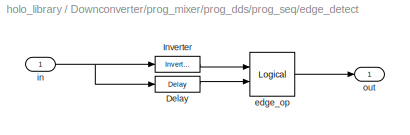
BLOCK [SubSystem] Downconverter/prog_mixer/prog_dds/prog_seq/edge_detect
  AncestorBlock = casper_library/Misc/edge_detect
  AttributesFormatString = rising edges\nactive high
  FunctionWithSeparateData = off
  MaskCallbackString = |||||
  MaskDescription = Output is active for one-cycle after each edge of the specified type (i.e. rising, falling or both).
  MaskDisplay = plot(x_in_num,0.5+y_in_num*0.2);\nplot(x_out_num,0.5+y_out_num*0.2);
  MaskEnableString = on,on,on,on,on,on
  MaskHelp = Output is active for one-cycle after each edge of the specified type (i.e. rising, falling, or both).  Latency is zero.
  MaskIconFrame = on
  MaskIconOpaque = on
  MaskIconRotate = none
  MaskIconUnits = normalized
  MaskInitialization = edge_detect_init(gcb,...\n    'edge',edge,...\n    'polarity',polarity,...\n    'x_in',x_in,...\n    'x_out',x_out,...\n    'y_in',y_in,...\n    'y_out',y_out);\n\nx_in_num=str2num(getfield(getfield(get_param(gcb,'UserData'),'parameters'),'x_in'));\nx_out_num=str2num(getfield(getfield(get_param(gcb,'UserData'),'parameters'),'x_out'));\ny_in_num=str2num(getfield(getfield(get_param(gcb,'UserData'),'...<+110ch>
  MaskPromptString = Edge Type|Output Polarity|Input X Positions|Input Y Positions|Output X Positions|Output Y Positions
  MaskSelfModifiable = on
  MaskStyleString = popup(Rising|Falling|Both),popup(Active High|Active Low),edit,edit,edit,edit
  MaskTabNameString = ,,,,,
  MaskToolTipString = on,on,on,on,on,on
  MaskTunableValueString = on,on,on,on,on,on
  MaskType = edge_detect
  MaskValueString = Rising|Active High|[0 0.08 0.08 0.16 0.16 0.24 0.24 0.32 0.32 0.4]|[-1 -1  1  1  1  1  1  1  1  1]|[0.6 0.68 0.68 0.76 0.76 0.84 0.84 0.92 0.92 1]|[-1 -1  1  1 -1 -1 -1 -1 -1 -1]
  MaskVarAliasString = ,,,,,
  MaskVariables = edge=&1;polarity=&2;x_in=&3;y_in=&4;x_out=&5;y_out=&6;
  MaskVisibilityString = on,on,off,off,off,off
  MinAlgLoopOccurrences = off
  Ports = [1, 1]
  RTWSystemCode = Auto
  UserData = DataTag1
  UserDataPersistent = on
BLOCK [Reference] Downconverter/prog_mixer/prog_dds/prog_seq/edge_detect/Delay  REF=xbsIndex_r4/Delay
  Ports = [1, 1]
  SourceBlock = xbsIndex_r4/Delay
  SourceType = Xilinx Delay Block
  block_type = delay
  block_version = 10.1.3
  dbl_ovrd = off
  en = off
  has_advanced_control = 0
  infoedit = Hardware notes: A delay line is a chain, each link of which is an SRL16 followed by a flip-flop.
  latency = 1
  reg_retiming = off
  sg_icon_stat = 45,16,1,1,white,blue,0,fc531c0e,right
  sg_mask_display = fprintf('','COMMENT: begin icon graphics');\npatch([0 60 60 0 ],[0 0 56 56 ],[0.77 0.82 0.91]);\npatch([15 6 19 6 15 30 34 38 54 41 29 20 32 20 29 41 54 38 34 30 15 ],[6 15 28 41 50 50 46 50 50 37 49 40 28 16 7 19 6 6 10 6 6 ],[0.98 0.96 0.92]);\nplot([0 60 60 0 0 ],[0 0 56 56 0 ]);\nfprintf('','COMMENT: end icon graphics');\nfprintf('','COMMENT: begin icon text');\ncolor('black');disp('z^{-1}','t...<+55ch>
  sggui_pos = -1,-1,-1,-1
  xl_area = [0, 0, 0, 0, 0, 0, 0]
  xl_use_area = off
BLOCK [Reference] Downconverter/prog_mixer/prog_dds/prog_seq/edge_detect/Inverter  REF=xbsIndex_r4/Inverter
  Ports = [1, 1]
  SourceBlock = xbsIndex_r4/Inverter
  SourceType = Xilinx Inverter Block
  block_type = inv
  block_version = 10.1.3
  dbl_ovrd = off
  en = off
  has_advanced_control = 0
  infoedit = Bitwise logical negation (one's complement) operator.
  latency = 0
  sg_icon_stat = 45,16,1,1,white,blue,0,1ab4a85f,right
  sg_mask_display = fprintf('','COMMENT: begin icon graphics');\npatch([0 55 55 0 ],[0 0 58 58 ],[0.77 0.82 0.91]);\npatch([13 4 17 4 13 28 32 36 52 40 28 19 32 19 28 40 52 36 32 28 13 ],[7 16 29 42 51 51 47 51 51 39 51 42 29 16 7 19 7 7 11 7 7 ],[0.98 0.96 0.92]);\nplot([0 55 55 0 0 ],[0 0 58 58 0 ]);\nfprintf('','COMMENT: end icon graphics');\nfprintf('','COMMENT: begin icon text');\ncolor('black');disp('not');\nfp...<+37ch>
  sggui_pos = -1,-1,-1,-1
  xl_area = [0, 0, 0, 0, 0, 0, 0]
  xl_use_area = off
BLOCK [Reference] Downconverter/prog_mixer/prog_dds/prog_seq/edge_detect/edge_op  REF=xbsIndex_r4/Logical
  Ports = [2, 1]
  SourceBlock = xbsIndex_r4/Logical
  SourceType = Xilinx Logical Block Block
  align_bp = on
  arith_type = Unsigned
  bin_pt = 2
  block_type = logical
  block_version = 10.1.3
  dbl_ovrd = off
  en = off
  has_advanced_control = 0
  inputs = 2
  latency = 0
  logical_function = NOR
  n_bits = 8
  precision = Full
  sg_icon_stat = 45,44,1,1,white,blue,0,0f2a8a4d,right
  sg_mask_display = fprintf('','COMMENT: begin icon graphics');\npatch([0 55 55 0 ],[0 0 60 60 ],[0.77 0.82 0.91]);\npatch([13 4 17 4 13 28 32 36 52 40 28 19 32 19 28 40 52 36 32 28 13 ],[8 17 30 43 52 52 48 52 52 40 52 43 30 17 8 20 8 8 12 8 8 ],[0.98 0.96 0.92]);\nplot([0 55 55 0 0 ],[0 0 60 60 0 ]);\nfprintf('','COMMENT: end icon graphics');\nfprintf('','COMMENT: begin icon text');\ncolor('black');disp('\\newlinen...<+76ch>
  sggui_pos = -1,-1,-1,-1
  xl_area = [0, 0, 0, 0, 0, 0, 0]
  xl_use_area = off
BLOCK [Inport] Downconverter/prog_mixer/prog_dds/prog_seq/edge_detect/in
  IconDisplay = Port number
  OutDataType = sfix(16)
  OutScaling = 2^0
BLOCK [Outport] Downconverter/prog_mixer/prog_dds/prog_seq/edge_detect/out
  IconDisplay = Port number
  OutDataType = sfix(16)
  OutScaling = 2^0
BLOCK [Inport] Downconverter/prog_mixer/prog_dds/prog_seq/init
  IconDisplay = Port number
  OutDataType = sfix(16)
  OutScaling = 2^0
  Port = 3
BLOCK [Outport] Downconverter/prog_mixer/prog_dds/prog_seq/location
  IconDisplay = Port number
  OutDataType = sfix(16)
  OutScaling = 2^0
  Port = 3
BLOCK [Reference] Downconverter/prog_mixer/prog_dds/prog_seq/pnt  REF=xbsIndex_r4/Slice
  Ports = [1, 1]
  SourceBlock = xbsIndex_r4/Slice
  SourceType = Xilinx Bit Slice Extractor Block
  base0 = LSB of Input
  base1 = MSB of Input
  bit0 = 0
  bit1 = 0
  block_type = slice
  block_version = 11.4
  boolean_output = off
  dbl_ovrd = off
  has_advanced_control = 0
  mode = Lower Bit Location + Width
  nbits = pnt_bits
  sg_icon_stat = 30,26,1,1,white,blue,0,b1026674,right
  sggui_pos = -1,-1,-1,-1
BLOCK [Inport] Downconverter/prog_mixer/prog_dds/prog_seq/pnt0_ld
  IconDisplay = Port number
  OutDataType = sfix(16)
  OutScaling = 2^0
  Port = 8
BLOCK [Inport] Downconverter/prog_mixer/prog_dds/prog_seq/pnt0_val
  IconDisplay = Port number
  OutDataType = sfix(16)
  OutScaling = 2^0
  Port = 7
BLOCK [Inport] Downconverter/prog_mixer/prog_dds/prog_seq/pointer
  IconDisplay = Port number
  OutDataType = sfix(16)
  OutScaling = 2^0
  Port = 6
BLOCK [Reference] Downconverter/prog_mixer/prog_dds/prog_seq/sync_delay  REF=xbsIndex_r4/Delay
  Ports = [1, 1]
  SourceBlock = xbsIndex_r4/Delay
  SourceType = Xilinx Delay Block
  block_type = delay
  block_version = 11.4
  dbl_ovrd = off
  en = off
  has_advanced_control = 0
  infoedit = Hardware notes: A delay line is a chain, each link of which is an SRL16 followed by a flip-flop.
  latency = 2
  reg_retiming = on
  sg_icon_stat = 30,24,1,1,white,blue,0,0a7a6cf1,right
  sggui_pos = -1,-1,-1,-1
  xl_area = [0,0,0,0,0,0,0]
  xl_use_area = off
BLOCK [Inport] Downconverter/prog_mixer/prog_dds/prog_seq/sync_in
  IconDisplay = Port number
  OutDataType = sfix(16)
  OutScaling = 2^0
BLOCK [Outport] Downconverter/prog_mixer/prog_dds/prog_seq/sync_out
  IconDisplay = Port number
  OutDataType = sfix(16)
  OutScaling = 2^0
BLOCK [Reference] Downconverter/prog_mixer/prog_dds/prog_seq/vec_table  REF=xbsIndex_r4/Dual Port RAM
  Ports = [7, 2]
  SourceBlock = xbsIndex_r4/Dual Port RAM
  SourceType = Xilinx Dual Port Random Access Memory Block
  block_type = dpram
  block_version = 11.4
  dbl_ovrd = off
  depth = 2^pnt_bits
  distributed_mem = Block RAM
  en_a = off
  en_b = off
  has_advanced_control = 0
  initVector = [pre_init_pnt, pre_pnt_vec(2:2^pnt_bits)]
  init_a = 0
  init_b = 0
  latency = 1
  optimize = Speed
  rst_a = off
  rst_b = on
  sg_icon_stat = 55,304,1,1,white,blue,0,d29d66cb,right
  sg_mask_display = fprintf('','COMMENT: begin icon graphics');\npatch([0 75 75 0 ],[0 0 165 165 ],[0.77 0.82 0.91]);\npatch([17 5 23 5 17 37 42 47 68 51 35 23 40 23 35 51 68 47 42 37 17 ],[53 65 83 101 113 113 108 113 113 96 112 100 83 66 54 70 53 53 58 53 53 ],[0.98 0.96 0.92]);\nplot([0 75 75 0 0 ],[0 0 165 165 0 ]);\nfprintf('','COMMENT: end icon graphics');\nfprintf('','COMMENT: begin icon text');\ncolor('black'...<+436ch>
  sggui_pos = 203,104,442,439
  use_rpm = on
  write_mode_A = Read Before Write
  write_mode_B = Read Before Write
  xl_area = [0,0,0,0,0,0,0]
  xl_use_area = off
BLOCK [Inport] Downconverter/prog_mixer/prog_dds/prog_seq/we
  IconDisplay = Port number
  OutDataType = sfix(16)
  OutScaling = 2^0
  Port = 4
BLOCK [Inport] Downconverter/prog_mixer/prog_dds/seq_we
  IconDisplay = Port number
  OutDataType = sfix(16)
  OutScaling = 2^0
  Port = 4
BLOCK [Outport] Downconverter/prog_mixer/prog_dds/sin
  IconDisplay = Port number
  OutDataType = sfix(16)
  OutScaling = 2^0
  Port = 4
BLOCK [Reference] Downconverter/prog_mixer/prog_dds/sin_bram  REF=xbsIndex_r4/Dual Port RAM
  Ports = [6, 2]
  SourceBlock = xbsIndex_r4/Dual Port RAM
  SourceType = Xilinx Dual Port Random Access Memory Block
  block_type = dpram
  block_version = 11.4
  dbl_ovrd = off
  depth = (2^lookup_bits)*streams
  distributed_mem = Block RAM
  en_a = off
  en_b = off
  has_advanced_control = 0
  initVector = [mod( -sin((mod(floor([0:denominator*streams-1]/streams) + mod([0:denominator*streams-1],streams)*numerator, denominator) * 2 * pi)/denominator) * 2^(data_bits-2) + 2^data_bits, 2^data_bits), zeros(1,(2^lookup_bits*streams)-(denominator*streams))]
  init_a = 0
  init_b = 0
  latency = bram_latency
  optimize = Speed
  rst_a = off
  rst_b = off
  sg_icon_stat = 75,165,1,1,white,blue,0,f19ffcf5,right
  sg_mask_display = fprintf('','COMMENT: begin icon graphics');\npatch([0 75 75 0 ],[0 0 165 165 ],[0.77 0.82 0.91]);\npatch([17 5 23 5 17 37 42 47 68 51 35 23 40 23 35 51 68 47 42 37 17 ],[53 65 83 101 113 113 108 113 113 96 112 100 83 66 54 70 53 53 58 53 53 ],[0.98 0.96 0.92]);\nplot([0 75 75 0 0 ],[0 0 165 165 0 ]);\nfprintf('','COMMENT: end icon graphics');\nfprintf('','COMMENT: begin icon text');\ncolor('black'...<+390ch>
  sggui_pos = 91,53,442,439
  use_rpm = on
  write_mode_A = Read After Write
  write_mode_B = Read After Write
  xl_area = [0,0,0,0,0,0,0]
  xl_use_area = off
BLOCK [Inport] Downconverter/prog_mixer/prog_dds/sin_we
  IconDisplay = Port number
  OutDataType = sfix(16)
  OutScaling = 2^0
  Port = 8
BLOCK [Inport] Downconverter/prog_mixer/prog_dds/sync_in
  IconDisplay = Port number
  OutDataType = sfix(16)
  OutScaling = 2^0
BLOCK [Outport] Downconverter/prog_mixer/prog_dds/sync_out
  IconDisplay = Port number
  OutDataType = sfix(16)
  OutScaling = 2^0
BLOCK [Reference] Downconverter/prog_mixer/rcmult1  REF=casper_library/Downconverter/mixer/rcmult1  (lib defined in mdl_138b2fc3435f, mdl_4ed325b712b3, +2 more)
  FunctionWithSeparateData = off
  Ports = [3, 2]
  RTWMemSecDataConstants = Inherit from model
  RTWMemSecDataInternal = Inherit from model
  RTWMemSecDataParameters = Inherit from model
  RTWMemSecFuncExecute = Inherit from model
  RTWMemSecFuncInitTerm = Inherit from model
  ShowPortLabels = FromPortIcon
  SourceBlock = casper_library/Downconverter/mixer/rcmult1
  SourceType = rcmult
  SystemSampleTime = -1
  latency = mult_latency
BLOCK [Reference] Downconverter/prog_mixer/rcmult2  REF=casper_library/Downconverter/mixer/rcmult1  (lib defined in mdl_138b2fc3435f, mdl_4ed325b712b3, +2 more)
  FunctionWithSeparateData = off
  Ports = [3, 2]
  RTWMemSecDataConstants = Inherit from model
  RTWMemSecDataInternal = Inherit from model
  RTWMemSecDataParameters = Inherit from model
  RTWMemSecFuncExecute = Inherit from model
  RTWMemSecFuncInitTerm = Inherit from model
  ShowPortLabels = FromPortIcon
  SourceBlock = casper_library/Downconverter/mixer/rcmult1
  SourceType = rcmult
  SystemSampleTime = -1
  latency = mult_latency
BLOCK [Reference] Downconverter/prog_mixer/rcmult3  REF=casper_library/Downconverter/mixer/rcmult1  (lib defined in mdl_138b2fc3435f, mdl_4ed325b712b3, +2 more)
  FunctionWithSeparateData = off
  Ports = [3, 2]
  RTWMemSecDataConstants = Inherit from model
  RTWMemSecDataInternal = Inherit from model
  RTWMemSecDataParameters = Inherit from model
  RTWMemSecFuncExecute = Inherit from model
  RTWMemSecFuncInitTerm = Inherit from model
  ShowPortLabels = FromPortIcon
  SourceBlock = casper_library/Downconverter/mixer/rcmult1
  SourceType = rcmult
  SystemSampleTime = -1
  latency = mult_latency
BLOCK [Reference] Downconverter/prog_mixer/rcmult4  REF=casper_library/Downconverter/mixer/rcmult1  (lib defined in mdl_138b2fc3435f, mdl_4ed325b712b3, +2 more)
  FunctionWithSeparateData = off
  Ports = [3, 2]
  RTWMemSecDataConstants = Inherit from model
  RTWMemSecDataInternal = Inherit from model
  RTWMemSecDataParameters = Inherit from model
  RTWMemSecFuncExecute = Inherit from model
  RTWMemSecFuncInitTerm = Inherit from model
  ShowPortLabels = FromPortIcon
  SourceBlock = casper_library/Downconverter/mixer/rcmult1
  SourceType = rcmult
  SystemSampleTime = -1
  latency = mult_latency
BLOCK [Outport] Downconverter/prog_mixer/real_out0
  IconDisplay = Port number
  OutDataType = sfix(16)
  OutScaling = 2^0
  Port = 2
BLOCK [Outport] Downconverter/prog_mixer/real_out1
  IconDisplay = Port number
  OutDataType = sfix(16)
  OutScaling = 2^0
  Port = 4
BLOCK [Outport] Downconverter/prog_mixer/real_out2
  IconDisplay = Port number
  OutDataType = sfix(16)
  OutScaling = 2^0
  Port = 6
BLOCK [Outport] Downconverter/prog_mixer/real_out3
  IconDisplay = Port number
  OutDataType = sfix(16)
  OutScaling = 2^0
  Port = 8
BLOCK [Inport] Downconverter/prog_mixer/seq_we
  IconDisplay = Port number
  OutDataType = sfix(16)
  OutScaling = 2^0
  Port = 4
BLOCK [Inport] Downconverter/prog_mixer/sin_we
  IconDisplay = Port number
  OutDataType = sfix(16)
  OutScaling = 2^0
  Port = 6
BLOCK [Inport] Downconverter/prog_mixer/sync_in
  IconDisplay = Port number
  OutDataType = sfix(16)
  OutScaling = 2^0
BLOCK [Outport] Downconverter/prog_mixer/sync_out
  IconDisplay = Port number
  OutDataType = sfix(16)
  OutScaling = 2^0
LINE Downconverter/prog_mixer/Convert1:1 -> Downconverter/prog_mixer/imag_out0:1
LINE Downconverter/prog_mixer/Convert2:1 -> Downconverter/prog_mixer/real_out1:1
LINE Downconverter/prog_mixer/Convert3:1 -> Downconverter/prog_mixer/imag_out1:1
LINE Downconverter/prog_mixer/Convert4:1 -> Downconverter/prog_mixer/real_out2:1
LINE Downconverter/prog_mixer/Convert5:1 -> Downconverter/prog_mixer/imag_out2:1
LINE Downconverter/prog_mixer/Convert6:1 -> Downconverter/prog_mixer/real_out3:1
LINE Downconverter/prog_mixer/Convert7:1 -> Downconverter/prog_mixer/imag_out3:1
LINE Downconverter/prog_mixer/Convert:1 -> Downconverter/prog_mixer/real_out0:1
LINE Downconverter/prog_mixer/Delay:1 -> Downconverter/prog_mixer/sync_out:1
LINE Downconverter/prog_mixer/Reinterpret10:1 -> Downconverter/prog_mixer/rcmult3:2
LINE Downconverter/prog_mixer/Reinterpret11:1 -> Downconverter/prog_mixer/rcmult4:2
LINE Downconverter/prog_mixer/Reinterpret1:1 -> Downconverter/prog_mixer/rcmult2:1
LINE Downconverter/prog_mixer/Reinterpret2:1 -> Downconverter/prog_mixer/rcmult3:1
LINE Downconverter/prog_mixer/Reinterpret3:1 -> Downconverter/prog_mixer/rcmult4:1
LINE Downconverter/prog_mixer/Reinterpret4:1 -> Downconverter/prog_mixer/rcmult1:3
LINE Downconverter/prog_mixer/Reinterpret5:1 -> Downconverter/prog_mixer/rcmult2:3
LINE Downconverter/prog_mixer/Reinterpret6:1 -> Downconverter/prog_mixer/rcmult3:3
LINE Downconverter/prog_mixer/Reinterpret7:1 -> Downconverter/prog_mixer/rcmult4:3
LINE Downconverter/prog_mixer/Reinterpret8:1 -> Downconverter/prog_mixer/rcmult1:2
LINE Downconverter/prog_mixer/Reinterpret9:1 -> Downconverter/prog_mixer/rcmult2:2
LINE Downconverter/prog_mixer/Reinterpret:1 -> Downconverter/prog_mixer/rcmult1:1
LINE Downconverter/prog_mixer/Slice10:1 -> Downconverter/prog_mixer/Reinterpret10:1
LINE Downconverter/prog_mixer/Slice11:1 -> Downconverter/prog_mixer/Reinterpret11:1
LINE Downconverter/prog_mixer/Slice1:1 -> Downconverter/prog_mixer/Reinterpret5:1
LINE Downconverter/prog_mixer/Slice2:1 -> Downconverter/prog_mixer/Reinterpret8:1
LINE Downconverter/prog_mixer/Slice3:1 -> Downconverter/prog_mixer/Reinterpret9:1
LINE Downconverter/prog_mixer/Slice4:1 -> Downconverter/prog_mixer/Reinterpret:1
LINE Downconverter/prog_mixer/Slice5:1 -> Downconverter/prog_mixer/Reinterpret1:1
LINE Downconverter/prog_mixer/Slice6:1 -> Downconverter/prog_mixer/Reinterpret2:1
LINE Downconverter/prog_mixer/Slice7:1 -> Downconverter/prog_mixer/Reinterpret3:1
LINE Downconverter/prog_mixer/Slice8:1 -> Downconverter/prog_mixer/Reinterpret6:1
LINE Downconverter/prog_mixer/Slice9:1 -> Downconverter/prog_mixer/Reinterpret7:1
LINE Downconverter/prog_mixer/Slice:1 -> Downconverter/prog_mixer/Reinterpret4:1
LINE Downconverter/prog_mixer/add:1 -> Downconverter/prog_mixer/prog_dds:5
LINE Downconverter/prog_mixer/cos_we:1 -> Downconverter/prog_mixer/prog_dds:7
LINE Downconverter/prog_mixer/dat:1 -> Downconverter/prog_mixer/prog_dds:6
LINE Downconverter/prog_mixer/din:1 -> Downconverter/prog_mixer/prog_dds:2
LINE Downconverter/prog_mixer/init:1 -> Downconverter/prog_mixer/prog_dds:3
LINE Downconverter/prog_mixer/pnt0_ld:1 -> Downconverter/prog_mixer/prog_dds:10
LINE Downconverter/prog_mixer/pnt0_val:1 -> Downconverter/prog_mixer/prog_dds:9
LINE Downconverter/prog_mixer/prog_dds/Constant1:1 -> Downconverter/prog_mixer/prog_dds/cos_bram:5
LINE Downconverter/prog_mixer/prog_dds/Constant2:1 -> Downconverter/prog_mixer/prog_dds/sin_bram:6
LINE Downconverter/prog_mixer/prog_dds/Constant3:1 -> Downconverter/prog_mixer/prog_dds/sin_bram:5
LINE Downconverter/prog_mixer/prog_dds/Constant:1 -> Downconverter/prog_mixer/prog_dds/cos_bram:6
LINE Downconverter/prog_mixer/prog_dds/Delay1:1 -> Downconverter/prog_mixer/prog_dds/dout:1
LINE Downconverter/prog_mixer/prog_dds/Delay:1 -> Downconverter/prog_mixer/prog_dds/sync_out:1
NET Downconverter/prog_mixer/prog_dds/Slice:1 -> Downconverter/prog_mixer/prog_dds/cos_bram:2, Downconverter/prog_mixer/prog_dds/sin_bram:2
NET Downconverter/prog_mixer/prog_dds/add:1 -> Downconverter/prog_mixer/prog_dds/cos_bram:1, Downconverter/prog_mixer/prog_dds/prog_seq:5, Downconverter/prog_mixer/prog_dds/sin_bram:1
LINE Downconverter/prog_mixer/prog_dds/cos_bram:1 -> Downconverter/prog_mixer/prog_dds/Terminator:1
LINE Downconverter/prog_mixer/prog_dds/cos_bram:2 -> Downconverter/prog_mixer/prog_dds/cos:1
LINE Downconverter/prog_mixer/prog_dds/cos_we:1 -> Downconverter/prog_mixer/prog_dds/cos_bram:3
NET Downconverter/prog_mixer/prog_dds/dat:1 -> Downconverter/prog_mixer/prog_dds/Slice:1, Downconverter/prog_mixer/prog_dds/prog_seq:6
LINE Downconverter/prog_mixer/prog_dds/din:1 -> Downconverter/prog_mixer/prog_dds/prog_seq:2
LINE Downconverter/prog_mixer/prog_dds/init:1 -> Downconverter/prog_mixer/prog_dds/prog_seq:3
LINE Downconverter/prog_mixer/prog_dds/pnt0_ld:1 -> Downconverter/prog_mixer/prog_dds/prog_seq:8
LINE Downconverter/prog_mixer/prog_dds/pnt0_val:1 -> Downconverter/prog_mixer/prog_dds/prog_seq:7
LINE Downconverter/prog_mixer/prog_dds/prog_seq/Delay:1 -> Downconverter/prog_mixer/prog_dds/prog_seq/vec_table:6
LINE Downconverter/prog_mixer/prog_dds/prog_seq/Register:1 -> Downconverter/prog_mixer/prog_dds/prog_seq/vec_table:5
LINE Downconverter/prog_mixer/prog_dds/prog_seq/Slice1:1 -> Downconverter/prog_mixer/prog_dds/prog_seq/vec_table:2
LINE Downconverter/prog_mixer/prog_dds/prog_seq/Slice:1 -> Downconverter/prog_mixer/prog_dds/prog_seq/vec_table:1
LINE Downconverter/prog_mixer/prog_dds/prog_seq/add:1 -> Downconverter/prog_mixer/prog_dds/prog_seq/Slice:1
LINE Downconverter/prog_mixer/prog_dds/prog_seq/din:1 -> Downconverter/prog_mixer/prog_dds/prog_seq/din_delay:1
LINE Downconverter/prog_mixer/prog_dds/prog_seq/din_delay:1 -> Downconverter/prog_mixer/prog_dds/prog_seq/dout:1
LINE Downconverter/prog_mixer/prog_dds/prog_seq/edge_detect/Delay:1 -> Downconverter/prog_mixer/prog_dds/prog_seq/edge_detect/edge_op:2
LINE Downconverter/prog_mixer/prog_dds/prog_seq/edge_detect/Inverter:1 -> Downconverter/prog_mixer/prog_dds/prog_seq/edge_detect/edge_op:1
LINE Downconverter/prog_mixer/prog_dds/prog_seq/edge_detect/edge_op:1 -> Downconverter/prog_mixer/prog_dds/prog_seq/edge_detect/out:1
NET Downconverter/prog_mixer/prog_dds/prog_seq/edge_detect/in:1 -> Downconverter/prog_mixer/prog_dds/prog_seq/edge_detect/Delay:1, Downconverter/prog_mixer/prog_dds/prog_seq/edge_detect/Inverter:1
NET Downconverter/prog_mixer/prog_dds/prog_seq/edge_detect:1 -> Downconverter/prog_mixer/prog_dds/prog_seq/Delay:1, Downconverter/prog_mixer/prog_dds/prog_seq/vec_table:7
LINE Downconverter/prog_mixer/prog_dds/prog_seq/init:1 -> Downconverter/prog_mixer/prog_dds/prog_seq/edge_detect:1
LINE Downconverter/prog_mixer/prog_dds/prog_seq/pnt0_ld:1 -> Downconverter/prog_mixer/prog_dds/prog_seq/Register:2
LINE Downconverter/prog_mixer/prog_dds/prog_seq/pnt0_val:1 -> Downconverter/prog_mixer/prog_dds/prog_seq/pnt:1
LINE Downconverter/prog_mixer/prog_dds/prog_seq/pnt:1 -> Downconverter/prog_mixer/prog_dds/prog_seq/Register:1
LINE Downconverter/prog_mixer/prog_dds/prog_seq/pointer:1 -> Downconverter/prog_mixer/prog_dds/prog_seq/Slice1:1
LINE Downconverter/prog_mixer/prog_dds/prog_seq/sync_delay:1 -> Downconverter/prog_mixer/prog_dds/prog_seq/sync_out:1
LINE Downconverter/prog_mixer/prog_dds/prog_seq/sync_in:1 -> Downconverter/prog_mixer/prog_dds/prog_seq/sync_delay:1
LINE Downconverter/prog_mixer/prog_dds/prog_seq/vec_table:1 -> Downconverter/prog_mixer/prog_dds/prog_seq/Terminator:1
NET Downconverter/prog_mixer/prog_dds/prog_seq/vec_table:2 -> Downconverter/prog_mixer/prog_dds/prog_seq/location:1, Downconverter/prog_mixer/prog_dds/prog_seq/vec_table:4
LINE Downconverter/prog_mixer/prog_dds/prog_seq/we:1 -> Downconverter/prog_mixer/prog_dds/prog_seq/vec_table:3
LINE Downconverter/prog_mixer/prog_dds/prog_seq:1 -> Downconverter/prog_mixer/prog_dds/Delay:1
LINE Downconverter/prog_mixer/prog_dds/prog_seq:2 -> Downconverter/prog_mixer/prog_dds/Delay1:1
NET Downconverter/prog_mixer/prog_dds/prog_seq:3 -> Downconverter/prog_mixer/prog_dds/cos_bram:4, Downconverter/prog_mixer/prog_dds/sin_bram:4
LINE Downconverter/prog_mixer/prog_dds/seq_we:1 -> Downconverter/prog_mixer/prog_dds/prog_seq:4
LINE Downconverter/prog_mixer/prog_dds/sin_bram:1 -> Downconverter/prog_mixer/prog_dds/Terminator1:1
LINE Downconverter/prog_mixer/prog_dds/sin_bram:2 -> Downconverter/prog_mixer/prog_dds/sin:1
LINE Downconverter/prog_mixer/prog_dds/sin_we:1 -> Downconverter/prog_mixer/prog_dds/sin_bram:3
LINE Downconverter/prog_mixer/prog_dds/sync_in:1 -> Downconverter/prog_mixer/prog_dds/prog_seq:1
LINE Downconverter/prog_mixer/prog_dds:1 -> Downconverter/prog_mixer/Delay:1
NET Downconverter/prog_mixer/prog_dds:2 -> Downconverter/prog_mixer/Slice4:1, Downconverter/prog_mixer/Slice5:1, Downconverter/prog_mixer/Slice6:1, Downconverter/prog_mixer/Slice7:1
NET Downconverter/prog_mixer/prog_dds:3 -> Downconverter/prog_mixer/Slice1:1, Downconverter/prog_mixer/Slice8:1, Downconverter/prog_mixer/Slice9:1, Downconverter/prog_mixer/Slice:1
NET Downconverter/prog_mixer/prog_dds:4 -> Downconverter/prog_mixer/Slice10:1, Downconverter/prog_mixer/Slice11:1, Downconverter/prog_mixer/Slice2:1, Downconverter/prog_mixer/Slice3:1
LINE Downconverter/prog_mixer/rcmult1:1 -> Downconverter/prog_mixer/Convert:1
LINE Downconverter/prog_mixer/rcmult1:2 -> Downconverter/prog_mixer/Convert1:1
LINE Downconverter/prog_mixer/rcmult2:1 -> Downconverter/prog_mixer/Convert2:1
LINE Downconverter/prog_mixer/rcmult2:2 -> Downconverter/prog_mixer/Convert3:1
LINE Downconverter/prog_mixer/rcmult3:1 -> Downconverter/prog_mixer/Convert4:1
LINE Downconverter/prog_mixer/rcmult3:2 -> Downconverter/prog_mixer/Convert5:1
LINE Downconverter/prog_mixer/rcmult4:1 -> Downconverter/prog_mixer/Convert6:1
LINE Downconverter/prog_mixer/rcmult4:2 -> Downconverter/prog_mixer/Convert7:1
LINE Downconverter/prog_mixer/seq_we:1 -> Downconverter/prog_mixer/prog_dds:4
LINE Downconverter/prog_mixer/sin_we:1 -> Downconverter/prog_mixer/prog_dds:8
LINE Downconverter/prog_mixer/sync_in:1 -> Downconverter/prog_mixer/prog_dds:1
note: NET lines group one-source signal fan-out (src -> all destinations, sorted); 1:1 wires keep LINE
